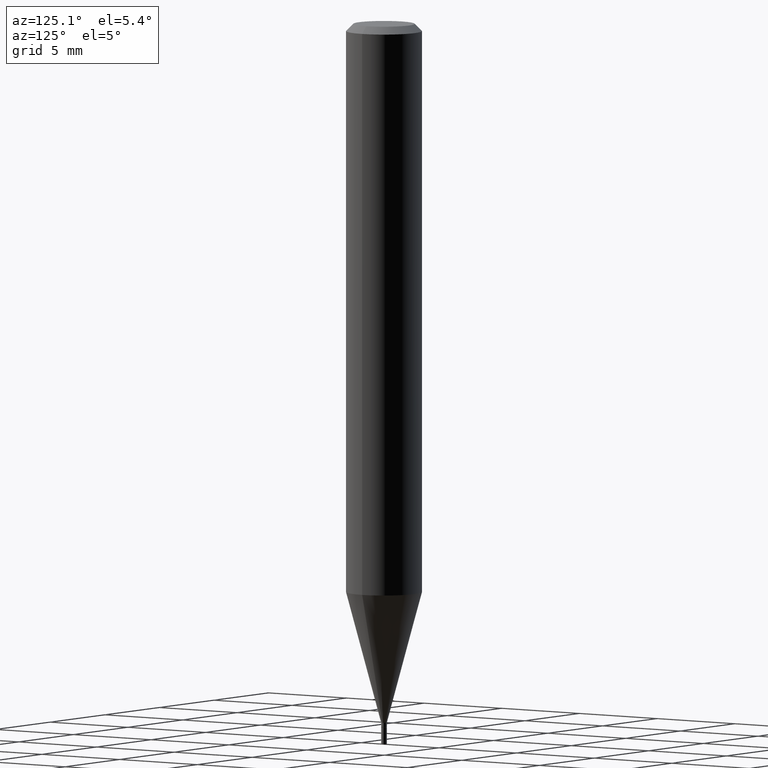
[diagram: clean part render]
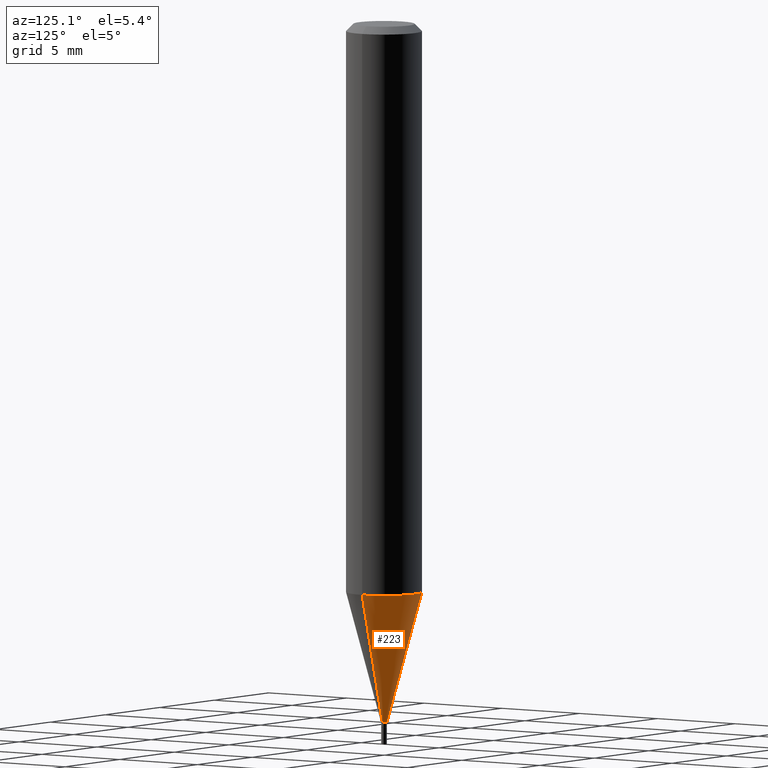
[diagram: same view with one face highlighted and labeled with its STEP entity id]
A machine part, auxiliary view. The second image highlights one B-rep face of the part: STEP entity #223.
In plain terms, the highlighted conical surface has half-angle 15 deg.
Its self-contained STEP definition (entity closure, byte-faithful):
#23 = VECTOR ( 'NONE', #146, 39.37007874015747433 ) ;
#27 = CARTESIAN_POINT ( 'NONE',  ( 0.005899999999999924402, -5.121304827815126395E-15, -1.455000000000000293 ) ) ;
#41 = DIRECTION ( 'NONE',  ( -2.445468806185136597E-29, 3.491481338843145583E-15, 1.000000000000000000 ) ) ;
#46 = CARTESIAN_POINT ( 'NONE',  ( -0.005899999999999924402, -5.038183326606932095E-15, -1.455000000000000293 ) ) ;
#58 = EDGE_CURVE ( 'NONE', #287, #458, #234, .T. ) ;
#63 = ORIENTED_EDGE ( 'NONE', *, *, #58, .T. ) ;
#67 = LINE ( 'NONE', #433, #99 ) ;
#99 = VECTOR ( 'NONE', #214, 39.37007874015747433 ) ;
#124 = AXIS2_PLACEMENT_3D ( 'NONE', #452, #419, #416 ) ;
#135 = ORIENTED_EDGE ( 'NONE', *, *, #201, .F. ) ;
#146 = DIRECTION ( 'NONE',  ( -0.2588190451025213501, 5.211531920934551042E-15, 0.9659258262890682012 ) ) ;
#161 = CARTESIAN_POINT ( 'NONE',  ( 2.893283295264761422E-29, -4.130841746111705750E-15, -1.183120098668607900 ) ) ;
#192 = DIRECTION ( 'NONE',  ( 1.000000000000000000, -6.982962677686307731E-15, 0.000000000000000000 ) ) ;
#201 = EDGE_CURVE ( 'NONE', #205, #458, #241, .T. ) ;
#202 = CONICAL_SURFACE ( 'NONE', #451, 0.005899999999999924402, 0.2617993877991500740 ) ;
#205 = VERTEX_POINT ( 'NONE', #377 ) ;
#214 = DIRECTION ( 'NONE',  ( 0.2588190451025213501, 1.565188264969621968E-15, 0.9659258262890682012 ) ) ;
#215 = CARTESIAN_POINT ( 'NONE',  ( 3.558157112999374623E-29, -5.080105348016777334E-15, -1.455000000000000293 ) ) ;
#217 = EDGE_CURVE ( 'NONE', #315, #287, #332, .T. ) ;
#223 = ADVANCED_FACE ( 'NONE', ( #346 ), #202, .T. ) ;
#234 = LINE ( 'NONE', #46, #23 ) ;
#241 = CIRCLE ( 'NONE', #309, 0.07875000000000000056 ) ;
#277 = DIRECTION ( 'NONE',  ( 1.000000000000000000, -6.982962677686268288E-15, 0.000000000000000000 ) ) ;
#287 = VERTEX_POINT ( 'NONE', #392 ) ;
#306 = EDGE_CURVE ( 'NONE', #315, #205, #67, .T. ) ;
#309 = AXIS2_PLACEMENT_3D ( 'NONE', #161, #318, #277 ) ;
#312 = ORIENTED_EDGE ( 'NONE', *, *, #217, .T. ) ;
#315 = VERTEX_POINT ( 'NONE', #27 ) ;
#318 = DIRECTION ( 'NONE',  ( -2.445468806185136597E-29, 3.491481338843145583E-15, 1.000000000000000000 ) ) ;
#332 = CIRCLE ( 'NONE', #124, 0.005899999999999924402 ) ;
#337 = CARTESIAN_POINT ( 'NONE',  ( -0.07875000000000000056, -3.571289341700626159E-15, -1.183120098668607900 ) ) ;
#346 = FACE_OUTER_BOUND ( 'NONE', #370, .T. ) ;
#370 = EDGE_LOOP ( 'NONE', ( #312, #63, #135, #417 ) ) ;
#377 = CARTESIAN_POINT ( 'NONE',  ( 0.07875000000000000056, -4.680750056979499095E-15, -1.183120098668607900 ) ) ;
#392 = CARTESIAN_POINT ( 'NONE',  ( -0.005899999999999924402, -4.304736334153779127E-15, -1.455000000000000293 ) ) ;
#416 = DIRECTION ( 'NONE',  ( 1.000000000000000000, -6.982962677686307731E-15, 0.000000000000000000 ) ) ;
#417 = ORIENTED_EDGE ( 'NONE', *, *, #306, .F. ) ;
#419 = DIRECTION ( 'NONE',  ( -2.445468806185136597E-29, 3.491481338843145583E-15, 1.000000000000000000 ) ) ;
#433 = CARTESIAN_POINT ( 'NONE',  ( 0.005899999999999924402, -5.121304827815126395E-15, -1.455000000000000293 ) ) ;
#451 = AXIS2_PLACEMENT_3D ( 'NONE', #215, #41, #192 ) ;
#452 = CARTESIAN_POINT ( 'NONE',  ( 3.558157112999374623E-29, -5.080105348016777334E-15, -1.455000000000000293 ) ) ;
#458 = VERTEX_POINT ( 'NONE', #337 ) ;